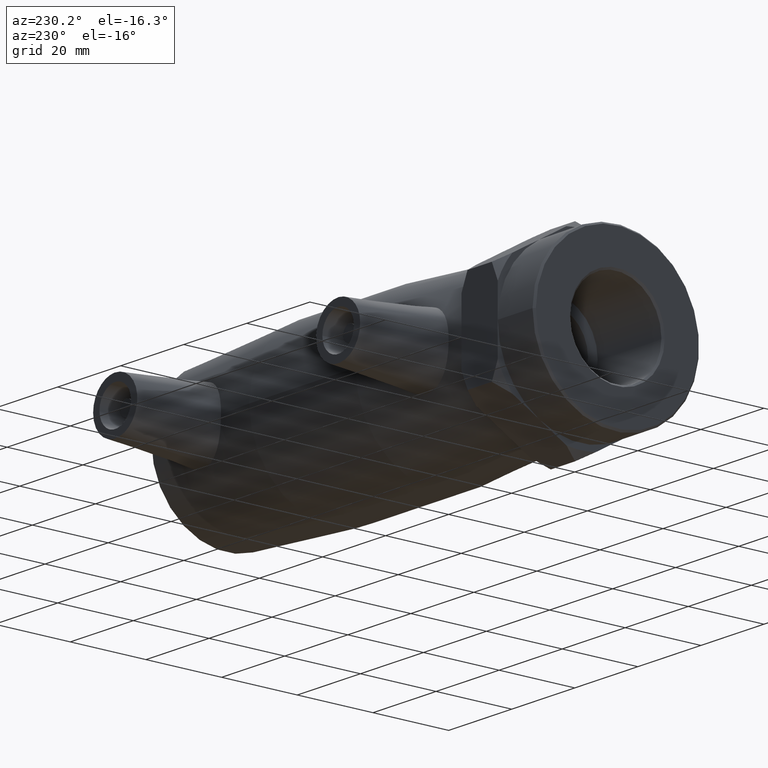
[diagram: clean part render]
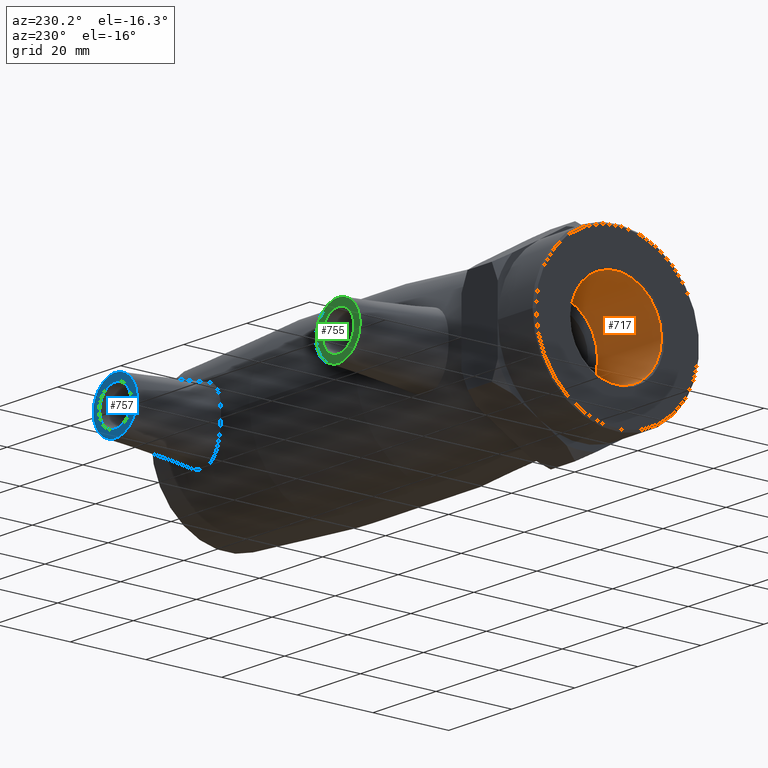
[diagram: same view with three faces highlighted in distinct colors, each labeled with its STEP entity id]
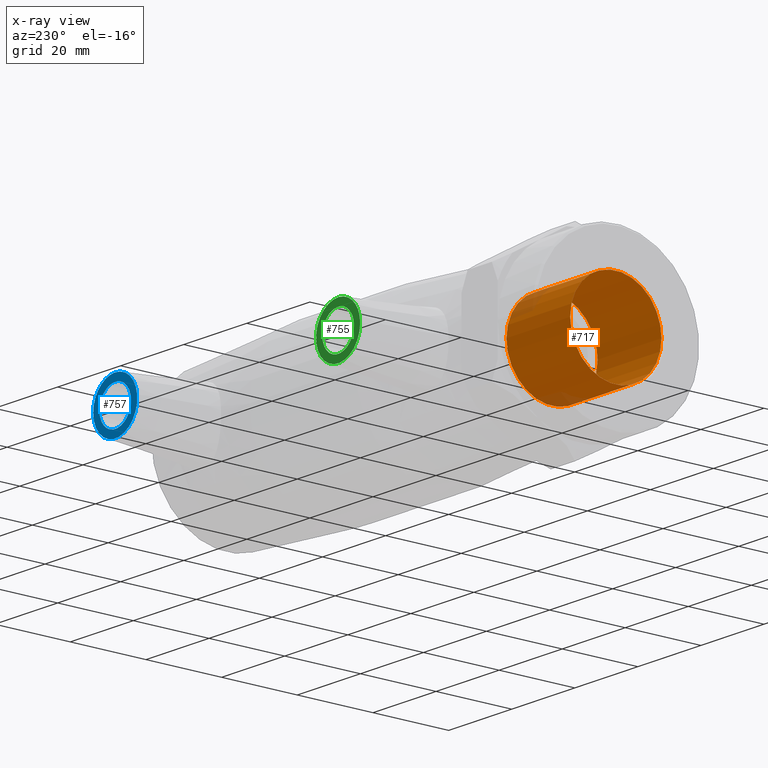
[diagram: x-ray of the same camera — body ghosted, the three highlighted faces saturated]
A machine part, auxiliary view with three faces highlighted in distinct colors.
The next image is the same camera in x-ray (body ghosted, the three faces saturated) — at least one of them is partly hidden behind the body in this view.
Their STEP definitions:

[orange] entity #717 — the highlighted cylindrical surface (bore or boss wall) has radius 12.0585 mm, axis along (1, 0, 0).
#90=CYLINDRICAL_SURFACE('',#780,12.0585);
#128=FACE_BOUND('',#218,.T.);
#158=FACE_OUTER_BOUND('',#217,.T.);
#217=EDGE_LOOP('',(#512));
#218=EDGE_LOOP('',(#513));
#295=CIRCLE('',#776,12.0585);
#298=CIRCLE('',#781,12.0585);
#340=VERTEX_POINT('',#1104);
#343=VERTEX_POINT('',#1112);
#411=EDGE_CURVE('',#340,#340,#295,.T.);
#414=EDGE_CURVE('',#343,#343,#298,.T.);
#512=ORIENTED_EDGE('',*,*,#414,.T.);
#513=ORIENTED_EDGE('',*,*,#411,.F.);
#717=ADVANCED_FACE('',(#158,#128),#90,.F.);
#776=AXIS2_PLACEMENT_3D('',#1105,#885,#886);
#780=AXIS2_PLACEMENT_3D('',#1111,#893,#894);
#781=AXIS2_PLACEMENT_3D('',#1113,#895,#896);
#885=DIRECTION('center_axis',(1.,0.,0.));
#886=DIRECTION('ref_axis',(0.,-1.,0.));
#893=DIRECTION('center_axis',(1.,0.,0.));
#894=DIRECTION('ref_axis',(0.,1.,0.));
#895=DIRECTION('center_axis',(1.,0.,0.));
#896=DIRECTION('ref_axis',(0.,0.,-1.));
#1104=CARTESIAN_POINT('',(-73.02,12.0585,1.47674034275184E-15));
#1105=CARTESIAN_POINT('Origin',(-73.02,0.,0.));
#1111=CARTESIAN_POINT('Origin',(-63.15,0.,0.));
#1112=CARTESIAN_POINT('',(-52.8,12.0585,0.));
#1113=CARTESIAN_POINT('Origin',(-52.8,0.,0.));

[blue] entity #757 — the highlighted planar face has unit normal (0, -1, 0).
#120=PLANE('',#853);
#142=FACE_BOUND('',#272,.T.);
#198=FACE_OUTER_BOUND('',#271,.T.);
#271=EDGE_LOOP('',(#672));
#272=EDGE_LOOP('',(#673));
#324=CIRCLE('',#839,5.);
#330=CIRCLE('',#852,7.);
#393=VERTEX_POINT('',#1316);
#399=VERTEX_POINT('',#1335);
#488=EDGE_CURVE('',#393,#393,#324,.T.);
#494=EDGE_CURVE('',#399,#399,#330,.T.);
#672=ORIENTED_EDGE('',*,*,#494,.T.);
#673=ORIENTED_EDGE('',*,*,#488,.T.);
#757=ADVANCED_FACE('',(#198,#142),#120,.F.);
#839=AXIS2_PLACEMENT_3D('',#1317,#1035,#1036);
#852=AXIS2_PLACEMENT_3D('',#1336,#1061,#1062);
#853=AXIS2_PLACEMENT_3D('',#1372,#1063,#1064);
#1035=DIRECTION('center_axis',(0.,-1.,0.));
#1036=DIRECTION('ref_axis',(1.,0.,0.));
#1061=DIRECTION('center_axis',(0.,1.,0.));
#1062=DIRECTION('ref_axis',(-1.,0.,0.));
#1063=DIRECTION('center_axis',(0.,-1.,0.));
#1064=DIRECTION('ref_axis',(0.,0.,1.));
#1316=CARTESIAN_POINT('',(30.35,42.,-6.12323399573677E-16));
#1317=CARTESIAN_POINT('Origin',(35.35,42.,0.));
#1335=CARTESIAN_POINT('',(42.35,42.,8.57252759403147E-16));
#1336=CARTESIAN_POINT('Origin',(35.35,42.,0.));
#1372=CARTESIAN_POINT('Origin',(35.35,42.,1.32169407693471E-16));

[green] entity #755 — the highlighted planar face has unit normal (0, 1, 0).
#119=PLANE('',#849);
#140=FACE_BOUND('',#268,.T.);
#196=FACE_OUTER_BOUND('',#267,.T.);
#267=EDGE_LOOP('',(#668));
#268=EDGE_LOOP('',(#669));
#328=CIRCLE('',#847,5.);
#329=CIRCLE('',#850,7.);
#397=VERTEX_POINT('',#1328);
#398=VERTEX_POINT('',#1332);
#492=EDGE_CURVE('',#397,#397,#328,.T.);
#493=EDGE_CURVE('',#398,#398,#329,.T.);
#668=ORIENTED_EDGE('',*,*,#493,.F.);
#669=ORIENTED_EDGE('',*,*,#492,.T.);
#755=ADVANCED_FACE('',(#196,#140),#119,.T.);
#847=AXIS2_PLACEMENT_3D('',#1329,#1051,#1052);
#849=AXIS2_PLACEMENT_3D('',#1331,#1055,#1056);
#850=AXIS2_PLACEMENT_3D('',#1333,#1057,#1058);
#1051=DIRECTION('center_axis',(0.,-1.,0.));
#1052=DIRECTION('ref_axis',(-1.,0.,0.));
#1055=DIRECTION('center_axis',(0.,1.,0.));
#1056=DIRECTION('ref_axis',(0.,0.,1.));
#1057=DIRECTION('center_axis',(0.,-1.,0.));
#1058=DIRECTION('ref_axis',(1.,0.,0.));
#1328=CARTESIAN_POINT('',(-30.35,42.,-6.12323399573677E-16));
#1329=CARTESIAN_POINT('Origin',(-35.35,42.,0.));
#1331=CARTESIAN_POINT('Origin',(-35.35,42.,1.32169407693471E-16));
#1332=CARTESIAN_POINT('',(-42.35,42.,8.57252759403147E-16));
#1333=CARTESIAN_POINT('Origin',(-35.35,42.,0.));